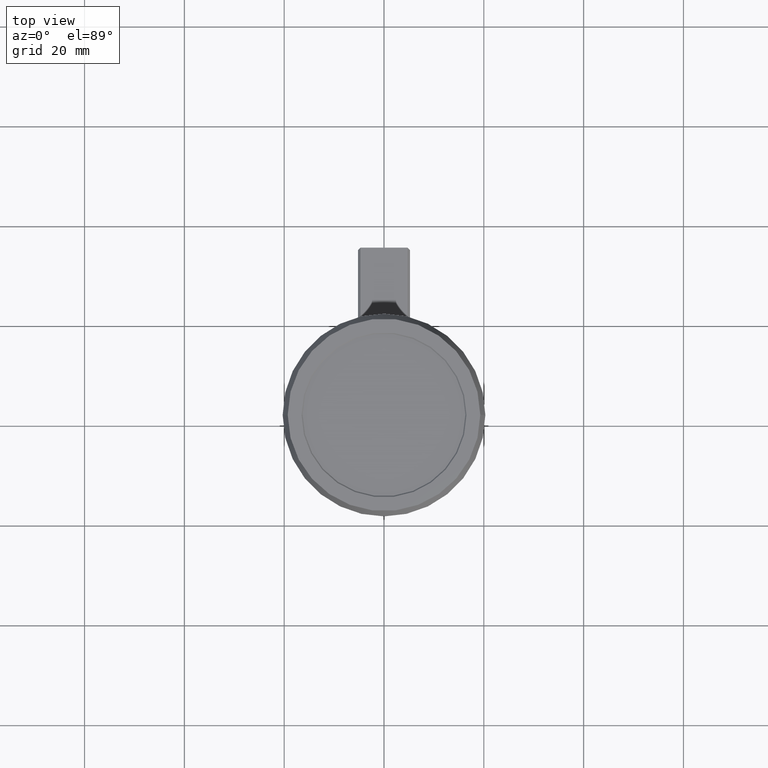
[diagram: clean part render]
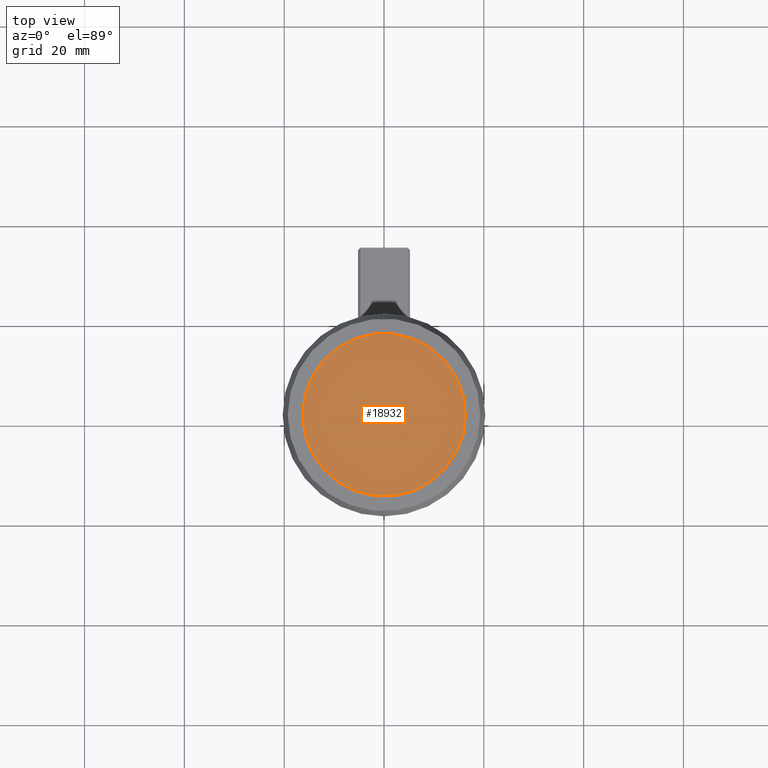
[diagram: same view with one face highlighted and labeled with its STEP entity id]
A machine part, top view. The second image highlights one B-rep face of the part: STEP entity #18932.
In plain terms, the highlighted planar face has unit normal (0, 0, 1).
Its self-contained STEP definition (entity closure, byte-faithful):
#3857 = DIRECTION ( 'NONE',  ( 0.000000000000000000, 0.000000000000000000, 1.000000000000000000 ) ) ;
#8958 = DIRECTION ( 'NONE',  ( 1.000000000000000000, 0.000000000000000000, 0.000000000000000000 ) ) ;
#13709 = DIRECTION ( 'NONE',  ( 0.000000000000000000, 0.000000000000000000, 1.000000000000000000 ) ) ;
#15587 = CARTESIAN_POINT ( 'NONE',  ( -0.6418076787748003831, 7.915011041321959757E-17, -0.009999999999999995004 ) ) ;
#18932 = ADVANCED_FACE ( 'NONE', ( #36870 ), #56271, .T. ) ;
#22849 = AXIS2_PLACEMENT_3D ( 'NONE', #51834, #32420, #47339 ) ;
#24846 = CIRCLE ( 'NONE', #25898, 0.6418076787748006051 ) ;
#25898 = AXIS2_PLACEMENT_3D ( 'NONE', #31815, #3857, #46442 ) ;
#31815 = CARTESIAN_POINT ( 'NONE',  ( 2.778584258761444007E-16, 0.000000000000000000, -0.009999999999999995004 ) ) ;
#32420 = DIRECTION ( 'NONE',  ( 0.000000000000000000, 0.000000000000000000, 1.000000000000000000 ) ) ;
#36870 = FACE_OUTER_BOUND ( 'NONE', #45584, .T. ) ;
#38097 = CIRCLE ( 'NONE', #43152, 0.6418076787748006051 ) ;
#43152 = AXIS2_PLACEMENT_3D ( 'NONE', #57264, #13709, #8958 ) ;
#44031 = ORIENTED_EDGE ( 'NONE', *, *, #56591, .T. ) ;
#45584 = EDGE_LOOP ( 'NONE', ( #47716, #44031 ) ) ;
#46442 = DIRECTION ( 'NONE',  ( 1.000000000000000000, 0.000000000000000000, 0.000000000000000000 ) ) ;
#47339 = DIRECTION ( 'NONE',  ( 1.000000000000000000, 0.000000000000000000, -0.000000000000000000 ) ) ;
#47716 = ORIENTED_EDGE ( 'NONE', *, *, #56527, .T. ) ;
#49141 = VERTEX_POINT ( 'NONE', #15587 ) ;
#51834 = CARTESIAN_POINT ( 'NONE',  ( 0.000000000000000000, 0.000000000000000000, -0.01000000000000000021 ) ) ;
#56271 = PLANE ( 'NONE',  #22849 ) ;
#56527 = EDGE_CURVE ( 'NONE', #62536, #49141, #24846, .T. ) ;
#56591 = EDGE_CURVE ( 'NONE', #49141, #62536, #38097, .T. ) ;
#56697 = CARTESIAN_POINT ( 'NONE',  ( 0.6418076787748008272, 0.000000000000000000, -0.009999999999999995004 ) ) ;
#57264 = CARTESIAN_POINT ( 'NONE',  ( 2.778584258761444007E-16, 0.000000000000000000, -0.009999999999999995004 ) ) ;
#62536 = VERTEX_POINT ( 'NONE', #56697 ) ;